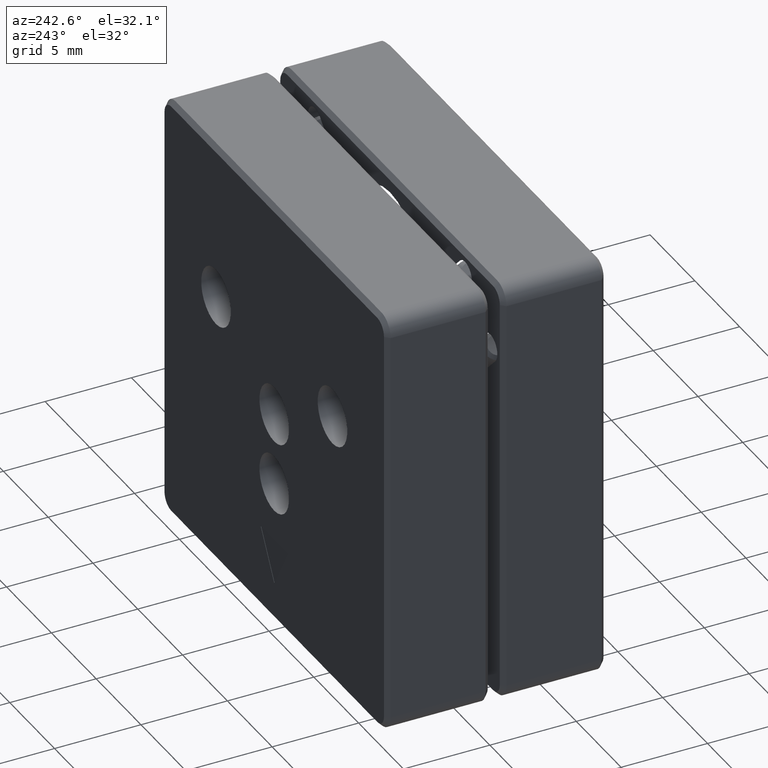
[diagram: clean part render]
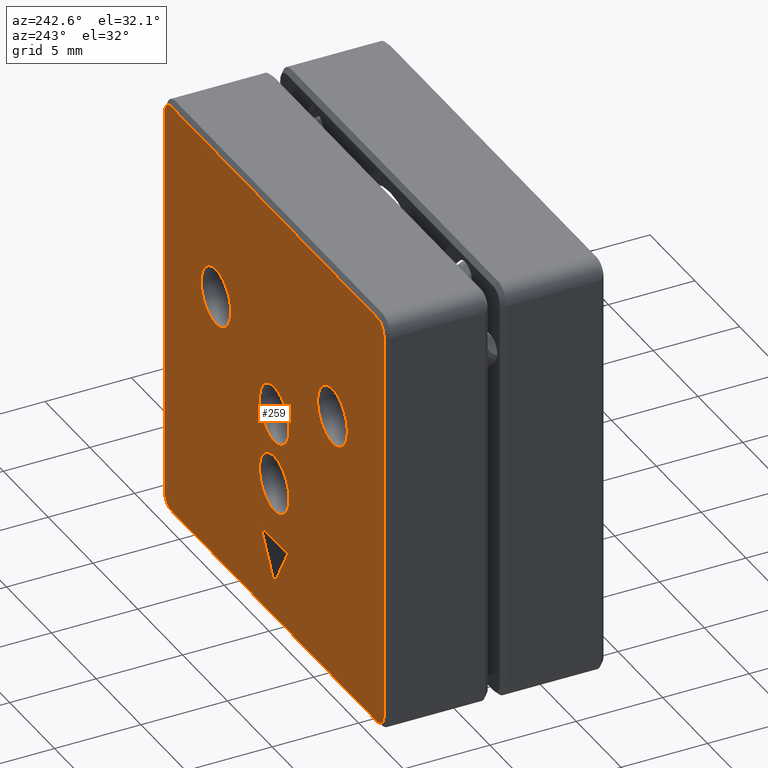
[diagram: same view with one face highlighted and labeled with its STEP entity id]
A machine part, auxiliary view. The second image highlights one B-rep face of the part: STEP entity #259.
In plain terms, the highlighted planar face has unit normal (-0, -1, 0).
Its self-contained STEP definition (entity closure, byte-faithful):
#27 = CIRCLE ( 'NONE', #3280, 1.649999999999988809 ) ;
#54 = EDGE_CURVE ( 'NONE', #804, #1791, #1562, .T. ) ;
#98 = EDGE_CURVE ( 'NONE', #312, #2400, #1927, .T. ) ;
#104 = DIRECTION ( 'NONE',  ( -6.706162754953245178E-19, -1.000000000000000000, 7.904105642296774844E-20 ) ) ;
#118 = LINE ( 'NONE', #3439, #1800 ) ;
#163 = EDGE_CURVE ( 'NONE', #739, #2061, #2502, .T. ) ;
#169 = LINE ( 'NONE', #1955, #3042 ) ;
#172 = PLANE ( 'NONE',  #604 ) ;
#180 = DIRECTION ( 'NONE',  ( 4.060337135958214105E-16, 7.904105642296507621E-20, 1.000000000000000000 ) ) ;
#254 = CARTESIAN_POINT ( 'NONE',  ( 1.043678559536865968E-14, 9.699958608817622618, -2.550000000000012257 ) ) ;
#259 = ADVANCED_FACE ( 'NONE', ( #1729, #3352, #3180, #2683, #557, #3142 ), #172, .F. ) ;
#260 = DIRECTION ( 'NONE',  ( -6.706162754953245178E-19, -1.000000000000000000, 7.904105642296774844E-20 ) ) ;
#270 = ORIENTED_EDGE ( 'NONE', *, *, #850, .T. ) ;
#312 = VERTEX_POINT ( 'NONE', #3088 ) ;
#369 = CARTESIAN_POINT ( 'NONE',  ( 9.766829967935559090E-15, 9.699958608817622618, -4.200000000000000178 ) ) ;
#371 = AXIS2_PLACEMENT_3D ( 'NONE', #2798, #1793, #2523 ) ;
#402 = AXIS2_PLACEMENT_3D ( 'NONE', #2235, #661, #2541 ) ;
#403 = ORIENTED_EDGE ( 'NONE', *, *, #667, .F. ) ;
#413 = VECTOR ( 'NONE', #2924, 1000.000000000000000 ) ;
#439 = EDGE_LOOP ( 'NONE', ( #2355, #1632 ) ) ;
#445 = DIRECTION ( 'NONE',  ( 2.672558355176768430E-16, 7.904105642296520862E-20, 1.000000000000000000 ) ) ;
#467 = CARTESIAN_POINT ( 'NONE',  ( -11.49999999999999112, 9.699958608817617289, 11.50000000000000533 ) ) ;
#476 = DIRECTION ( 'NONE',  ( 0.0000000000000000000, 0.0000000000000000000, 1.000000000000000000 ) ) ;
#507 = AXIS2_PLACEMENT_3D ( 'NONE', #369, #631, #855 ) ;
#526 = DIRECTION ( 'NONE',  ( 2.312964634635746211E-15, 0.0000000000000000000, 1.000000000000000000 ) ) ;
#557 = FACE_BOUND ( 'NONE', #1569, .T. ) ;
#559 = CARTESIAN_POINT ( 'NONE',  ( 5.799730936459904551E-15, 9.699958608817617289, -10.23205080756887853 ) ) ;
#576 = CIRCLE ( 'NONE', #2307, 0.7500000000000006661 ) ;
#597 = DIRECTION ( 'NONE',  ( 5.256737805990360535E-16, 0.0000000000000000000, 1.000000000000000000 ) ) ;
#604 = AXIS2_PLACEMENT_3D ( 'NONE', #1235, #713, #180 ) ;
#631 = DIRECTION ( 'NONE',  ( -6.706162754953245178E-19, -1.000000000000000000, 7.904105642296774844E-20 ) ) ;
#647 = CARTESIAN_POINT ( 'NONE',  ( 8.892795769816661266E-15, 9.699958608817622618, -5.849999999999988987 ) ) ;
#655 = VERTEX_POINT ( 'NONE', #2170 ) ;
#661 = DIRECTION ( 'NONE',  ( -6.706162754953245178E-19, -1.000000000000000000, 7.904105642296774844E-20 ) ) ;
#667 = EDGE_CURVE ( 'NONE', #1794, #312, #1050, .T. ) ;
#697 = ORIENTED_EDGE ( 'NONE', *, *, #3006, .T. ) ;
#713 = DIRECTION ( 'NONE',  ( -6.706162754953244216E-19, -1.000000000000000000, 7.904105642296535306E-20 ) ) ;
#739 = VERTEX_POINT ( 'NONE', #647 ) ;
#757 = EDGE_CURVE ( 'NONE', #655, #1527, #2374, .T. ) ;
#776 = VECTOR ( 'NONE', #445, 1000.000000000000000 ) ;
#802 = VERTEX_POINT ( 'NONE', #1192 ) ;
#804 = VERTEX_POINT ( 'NONE', #2006 ) ;
#820 = EDGE_CURVE ( 'NONE', #802, #3010, #2713, .T. ) ;
#835 = CARTESIAN_POINT ( 'NONE',  ( 11.50000000000000533, 9.699958608817617289, -11.50000000000000355 ) ) ;
#850 = EDGE_CURVE ( 'NONE', #2992, #3023, #3264, .T. ) ;
#853 = VERTEX_POINT ( 'NONE', #2139 ) ;
#855 = DIRECTION ( 'NONE',  ( 4.060337135958212133E-16, 0.0000000000000000000, 1.000000000000000000 ) ) ;
#869 = CARTESIAN_POINT ( 'NONE',  ( 6.500000000000011546, 9.699958608817622618, 3.499999999999999112 ) ) ;
#916 = DIRECTION ( 'NONE',  ( -2.672558355176768430E-16, -7.904105642296520862E-20, -1.000000000000000000 ) ) ;
#935 = AXIS2_PLACEMENT_3D ( 'NONE', #2017, #3096, #3366 ) ;
#937 = DIRECTION ( 'NONE',  ( 4.060337135958215584E-16, 0.0000000000000000000, 1.000000000000000000 ) ) ;
#1025 = ORIENTED_EDGE ( 'NONE', *, *, #2770, .T. ) ;
#1050 = LINE ( 'NONE', #3273, #2589 ) ;
#1115 = LINE ( 'NONE', #2921, #1626 ) ;
#1118 = AXIS2_PLACEMENT_3D ( 'NONE', #835, #2417, #526 ) ;
#1120 = EDGE_LOOP ( 'NONE', ( #1854, #2119 ) ) ;
#1161 = EDGE_CURVE ( 'NONE', #3010, #2992, #169, .T. ) ;
#1192 = CARTESIAN_POINT ( 'NONE',  ( 11.50000000000000888, 9.699958608817617289, 12.24999999999999822 ) ) ;
#1210 = EDGE_CURVE ( 'NONE', #1527, #655, #3175, .T. ) ;
#1230 = DIRECTION ( 'NONE',  ( 2.312964634635740689E-15, 0.0000000000000000000, 1.000000000000000000 ) ) ;
#1235 = CARTESIAN_POINT ( 'NONE',  ( 1.147217156503794906E-14, 9.699958608817617289, -2.371231692688979971E-19 ) ) ;
#1254 = LINE ( 'NONE', #2164, #413 ) ;
#1260 = AXIS2_PLACEMENT_3D ( 'NONE', #2249, #104, #937 ) ;
#1269 = DIRECTION ( 'NONE',  ( 6.706162754953245178E-19, 1.000000000000000000, -7.904105642296774844E-20 ) ) ;
#1270 = VERTEX_POINT ( 'NONE', #2825 ) ;
#1275 = DIRECTION ( 'NONE',  ( -6.706162754953245178E-19, -1.000000000000000000, 7.904105642296774844E-20 ) ) ;
#1288 = CARTESIAN_POINT ( 'NONE',  ( 12.25000000000000355, 9.699958608817617289, -11.50000000000000355 ) ) ;
#1349 = DIRECTION ( 'NONE',  ( -0.4999999999999996669, 4.037597005519051366E-19, 0.8660254037844388186 ) ) ;
#1395 = EDGE_CURVE ( 'NONE', #2400, #1794, #118, .T. ) ;
#1414 = ORIENTED_EDGE ( 'NONE', *, *, #2750, .T. ) ;
#1446 = DIRECTION ( 'NONE',  ( -6.706162754953245178E-19, -1.000000000000000000, 7.904105642296774844E-20 ) ) ;
#1489 = ORIENTED_EDGE ( 'NONE', *, *, #2354, .T. ) ;
#1527 = VERTEX_POINT ( 'NONE', #2144 ) ;
#1536 = CARTESIAN_POINT ( 'NONE',  ( 6.500000000000011546, 9.699958608817622618, 3.499999999999999112 ) ) ;
#1562 = CIRCLE ( 'NONE', #1921, 1.649999999999987033 ) ;
#1566 = DIRECTION ( 'NONE',  ( -1.000000000000000000, 6.706162754953179697E-19, 1.458251921993003464E-16 ) ) ;
#1569 = EDGE_LOOP ( 'NONE', ( #2644, #403, #3052 ) ) ;
#1572 = AXIS2_PLACEMENT_3D ( 'NONE', #1975, #1446, #2504 ) ;
#1626 = VECTOR ( 'NONE', #1566, 1000.000000000000000 ) ;
#1632 = ORIENTED_EDGE ( 'NONE', *, *, #757, .T. ) ;
#1663 = DIRECTION ( 'NONE',  ( -6.706162754953245178E-19, -1.000000000000000000, 7.904105642296774844E-20 ) ) ;
#1698 = AXIS2_PLACEMENT_3D ( 'NONE', #2857, #1269, #1230 ) ;
#1706 = EDGE_LOOP ( 'NONE', ( #1414, #2108 ) ) ;
#1729 = FACE_BOUND ( 'NONE', #2477, .T. ) ;
#1768 = CARTESIAN_POINT ( 'NONE',  ( -1.499999999999992006, 9.699958608817617289, -7.633974596215563402 ) ) ;
#1783 = ORIENTED_EDGE ( 'NONE', *, *, #820, .T. ) ;
#1791 = VERTEX_POINT ( 'NONE', #2773 ) ;
#1793 = DIRECTION ( 'NONE',  ( -6.706162754953245178E-19, -1.000000000000000000, 7.904105642296774844E-20 ) ) ;
#1794 = VERTEX_POINT ( 'NONE', #2294 ) ;
#1800 = VECTOR ( 'NONE', #2110, 1000.000000000000000 ) ;
#1847 = CARTESIAN_POINT ( 'NONE',  ( -12.24999999999999467, 9.699958608817617289, -11.49999999999999645 ) ) ;
#1854 = ORIENTED_EDGE ( 'NONE', *, *, #54, .T. ) ;
#1921 = AXIS2_PLACEMENT_3D ( 'NONE', #2670, #260, #2922 ) ;
#1927 = LINE ( 'NONE', #559, #3395 ) ;
#1952 = DIRECTION ( 'NONE',  ( -0.5000000000000003331, 2.668565749434128331E-19, -0.8660254037844383745 ) ) ;
#1955 = CARTESIAN_POINT ( 'NONE',  ( 12.25000000000000711, 9.699958608817617289, -8.656672115341478533E-17 ) ) ;
#1957 = CARTESIAN_POINT ( 'NONE',  ( -11.49999999999999467, 9.699958608817617289, -12.24999999999999645 ) ) ;
#1975 = CARTESIAN_POINT ( 'NONE',  ( 9.766829967935559090E-15, 9.699958608817622618, -4.200000000000000178 ) ) ;
#1976 = CARTESIAN_POINT ( 'NONE',  ( -12.24999999999999112, 9.699958608817617289, 11.50000000000000533 ) ) ;
#1990 = CIRCLE ( 'NONE', #2462, 1.649999999999988809 ) ;
#2006 = CARTESIAN_POINT ( 'NONE',  ( -6.499999999999986677, 9.699958608817622618, 5.149999999999989697 ) ) ;
#2017 = CARTESIAN_POINT ( 'NONE',  ( 11.50000000000000888, 9.699958608817617289, 11.50000000000000000 ) ) ;
#2048 = CARTESIAN_POINT ( 'NONE',  ( -12.24999999999999289, 9.699958608817617289, 8.609247481490730549E-17 ) ) ;
#2060 = VERTEX_POINT ( 'NONE', #1847 ) ;
#2061 = VERTEX_POINT ( 'NONE', #254 ) ;
#2108 = ORIENTED_EDGE ( 'NONE', *, *, #163, .T. ) ;
#2110 = DIRECTION ( 'NONE',  ( 1.000000000000000000, -6.706162754953179697E-19, 1.432953871301674370E-16 ) ) ;
#2119 = ORIENTED_EDGE ( 'NONE', *, *, #2207, .T. ) ;
#2139 = CARTESIAN_POINT ( 'NONE',  ( 6.500000000000012434, 9.699958608817622618, 5.149999999999987921 ) ) ;
#2144 = CARTESIAN_POINT ( 'NONE',  ( 1.214212719247105439E-14, 9.699958608817617289, 1.649999999999998357 ) ) ;
#2163 = CIRCLE ( 'NONE', #1698, 0.7500000000000006661 ) ;
#2164 = CARTESIAN_POINT ( 'NONE',  ( 1.644608455658674714E-14, 9.699958608817617289, 12.25000000000000178 ) ) ;
#2170 = CARTESIAN_POINT ( 'NONE',  ( 1.059813736691910330E-14, 9.699958608817617289, -1.649999999999998357 ) ) ;
#2207 = EDGE_CURVE ( 'NONE', #1791, #804, #3341, .T. ) ;
#2235 = CARTESIAN_POINT ( 'NONE',  ( 1.147217156503794906E-14, 9.699958608817617289, -2.371231692688979971E-19 ) ) ;
#2249 = CARTESIAN_POINT ( 'NONE',  ( 1.147217156503794906E-14, 9.699958608817617289, -2.371231692688979971E-19 ) ) ;
#2288 = CARTESIAN_POINT ( 'NONE',  ( 11.50000000000000533, 9.699958608817617289, -12.25000000000000178 ) ) ;
#2294 = CARTESIAN_POINT ( 'NONE',  ( 1.500000000000008882, 9.699958608817617289, -7.633974596215562514 ) ) ;
#2307 = AXIS2_PLACEMENT_3D ( 'NONE', #467, #2583, #476 ) ;
#2320 = CARTESIAN_POINT ( 'NONE',  ( 12.25000000000000888, 9.699958608817617289, 11.49999999999999822 ) ) ;
#2354 = EDGE_CURVE ( 'NONE', #2748, #2060, #2163, .T. ) ;
#2355 = ORIENTED_EDGE ( 'NONE', *, *, #1210, .T. ) ;
#2374 = CIRCLE ( 'NONE', #402, 1.649999999999998357 ) ;
#2400 = VERTEX_POINT ( 'NONE', #1768 ) ;
#2417 = DIRECTION ( 'NONE',  ( 6.706162754953245178E-19, 1.000000000000000000, -7.904105642296774844E-20 ) ) ;
#2462 = AXIS2_PLACEMENT_3D ( 'NONE', #869, #1663, #597 ) ;
#2477 = EDGE_LOOP ( 'NONE', ( #3278, #1025 ) ) ;
#2502 = CIRCLE ( 'NONE', #1572, 1.649999999999988365 ) ;
#2504 = DIRECTION ( 'NONE',  ( 4.060337135958212133E-16, 0.0000000000000000000, 1.000000000000000000 ) ) ;
#2523 = DIRECTION ( 'NONE',  ( 5.256737805990365466E-16, 0.0000000000000000000, 1.000000000000000000 ) ) ;
#2524 = LINE ( 'NONE', #2048, #776 ) ;
#2541 = DIRECTION ( 'NONE',  ( 4.060337135958215584E-16, 0.0000000000000000000, 1.000000000000000000 ) ) ;
#2566 = VERTEX_POINT ( 'NONE', #2899 ) ;
#2568 = DIRECTION ( 'NONE',  ( 5.256737805990360535E-16, 0.0000000000000000000, 1.000000000000000000 ) ) ;
#2583 = DIRECTION ( 'NONE',  ( 6.706162754953245178E-19, 1.000000000000000000, -7.904105642296774844E-20 ) ) ;
#2589 = VECTOR ( 'NONE', #1952, 1000.000000000000114 ) ;
#2638 = ORIENTED_EDGE ( 'NONE', *, *, #1161, .T. ) ;
#2640 = EDGE_CURVE ( 'NONE', #1270, #802, #1254, .T. ) ;
#2644 = ORIENTED_EDGE ( 'NONE', *, *, #98, .F. ) ;
#2670 = CARTESIAN_POINT ( 'NONE',  ( -6.499999999999987566, 9.699958608817622618, 3.500000000000002665 ) ) ;
#2683 = FACE_OUTER_BOUND ( 'NONE', #3249, .T. ) ;
#2685 = ORIENTED_EDGE ( 'NONE', *, *, #3039, .T. ) ;
#2713 = CIRCLE ( 'NONE', #935, 0.7500000000000006661 ) ;
#2748 = VERTEX_POINT ( 'NONE', #1957 ) ;
#2750 = EDGE_CURVE ( 'NONE', #2061, #739, #2869, .T. ) ;
#2770 = EDGE_CURVE ( 'NONE', #2566, #853, #1990, .T. ) ;
#2773 = CARTESIAN_POINT ( 'NONE',  ( -6.499999999999988454, 9.699958608817622618, 1.850000000000015188 ) ) ;
#2798 = CARTESIAN_POINT ( 'NONE',  ( -6.499999999999987566, 9.699958608817622618, 3.500000000000002665 ) ) ;
#2825 = CARTESIAN_POINT ( 'NONE',  ( -11.49999999999999112, 9.699958608817617289, 12.25000000000000533 ) ) ;
#2857 = CARTESIAN_POINT ( 'NONE',  ( -11.49999999999999467, 9.699958608817617289, -11.49999999999999645 ) ) ;
#2869 = CIRCLE ( 'NONE', #507, 1.649999999999988365 ) ;
#2871 = ORIENTED_EDGE ( 'NONE', *, *, #2640, .T. ) ;
#2873 = ORIENTED_EDGE ( 'NONE', *, *, #3379, .T. ) ;
#2899 = CARTESIAN_POINT ( 'NONE',  ( 6.500000000000010658, 9.699958608817622618, 1.850000000000010969 ) ) ;
#2904 = VERTEX_POINT ( 'NONE', #1976 ) ;
#2921 = CARTESIAN_POINT ( 'NONE',  ( 6.498258573489154137E-15, 9.699958608817617289, -12.24999999999999822 ) ) ;
#2922 = DIRECTION ( 'NONE',  ( 5.256737805990365466E-16, 0.0000000000000000000, 1.000000000000000000 ) ) ;
#2924 = DIRECTION ( 'NONE',  ( 1.000000000000000000, -6.706162754953179697E-19, -1.458251921993003464E-16 ) ) ;
#2964 = EDGE_CURVE ( 'NONE', #853, #2566, #27, .T. ) ;
#2992 = VERTEX_POINT ( 'NONE', #1288 ) ;
#3006 = EDGE_CURVE ( 'NONE', #2904, #1270, #576, .T. ) ;
#3010 = VERTEX_POINT ( 'NONE', #2320 ) ;
#3023 = VERTEX_POINT ( 'NONE', #2288 ) ;
#3039 = EDGE_CURVE ( 'NONE', #3023, #2748, #1115, .T. ) ;
#3042 = VECTOR ( 'NONE', #916, 1000.000000000000000 ) ;
#3052 = ORIENTED_EDGE ( 'NONE', *, *, #1395, .F. ) ;
#3088 = CARTESIAN_POINT ( 'NONE',  ( 4.715528763974400117E-15, 9.699958608817617289, -10.23205080756887853 ) ) ;
#3096 = DIRECTION ( 'NONE',  ( 6.706162754953245178E-19, 1.000000000000000000, -7.904105642296774844E-20 ) ) ;
#3142 = FACE_BOUND ( 'NONE', #439, .T. ) ;
#3175 = CIRCLE ( 'NONE', #1260, 1.649999999999998357 ) ;
#3180 = FACE_BOUND ( 'NONE', #1706, .T. ) ;
#3249 = EDGE_LOOP ( 'NONE', ( #1783, #2638, #270, #2685, #1489, #2873, #697, #2871 ) ) ;
#3264 = CIRCLE ( 'NONE', #1118, 0.7499999999999988898 ) ;
#3273 = CARTESIAN_POINT ( 'NONE',  ( 1.500000000000008882, 9.699958608817617289, -7.633974596215562514 ) ) ;
#3278 = ORIENTED_EDGE ( 'NONE', *, *, #2964, .T. ) ;
#3280 = AXIS2_PLACEMENT_3D ( 'NONE', #1536, #1275, #2568 ) ;
#3341 = CIRCLE ( 'NONE', #371, 1.649999999999987033 ) ;
#3352 = FACE_BOUND ( 'NONE', #1120, .T. ) ;
#3366 = DIRECTION ( 'NONE',  ( 0.0000000000000000000, 0.0000000000000000000, 1.000000000000000000 ) ) ;
#3379 = EDGE_CURVE ( 'NONE', #2060, #2904, #2524, .T. ) ;
#3395 = VECTOR ( 'NONE', #1349, 1000.000000000000114 ) ;
#3439 = CARTESIAN_POINT ( 'NONE',  ( -1.499999999999992006, 9.699958608817617289, -7.633974596215563402 ) ) ;